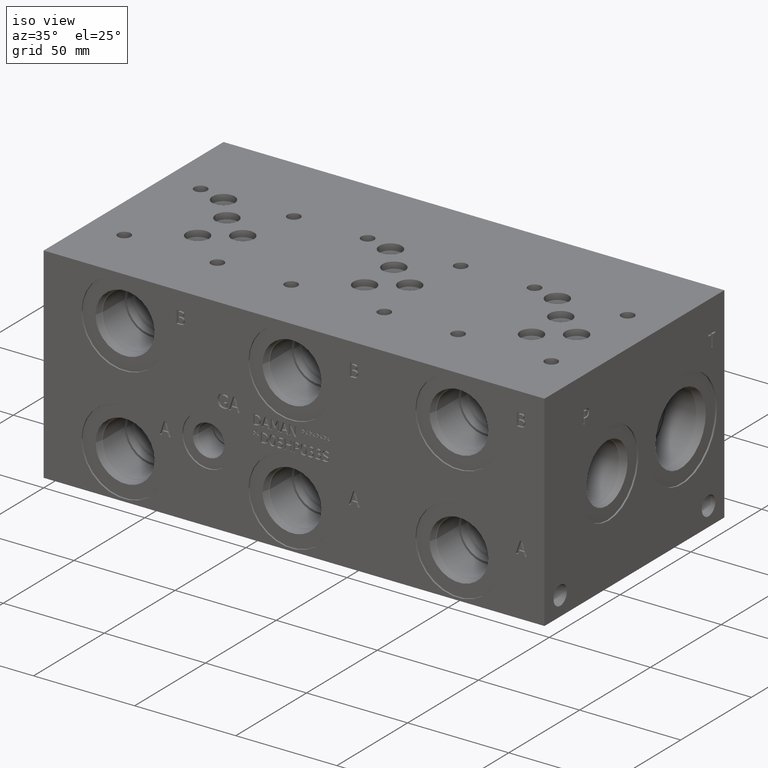
[diagram: clean part render]
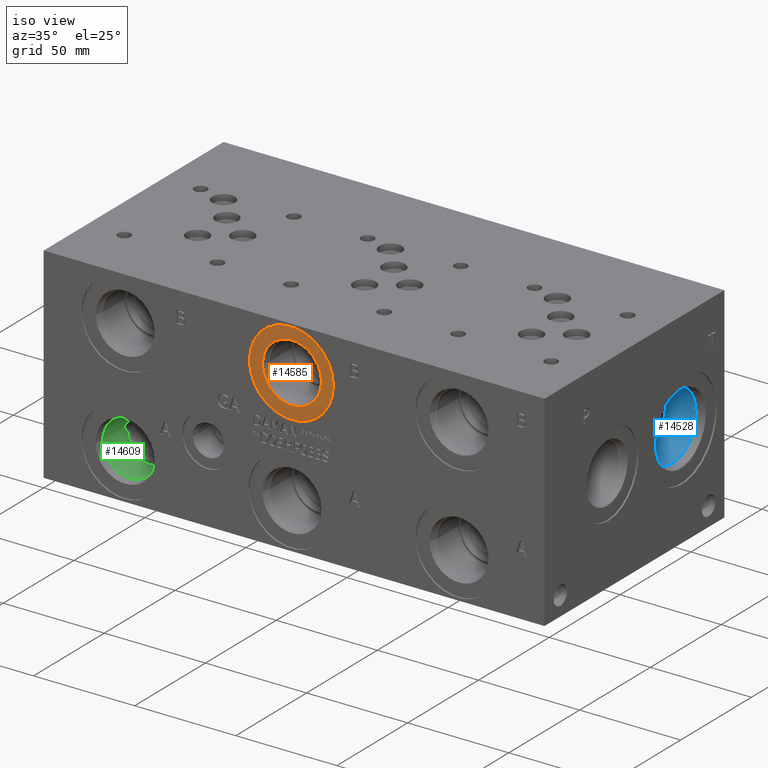
[diagram: same view with three faces highlighted in distinct colors, each labeled with its STEP entity id]
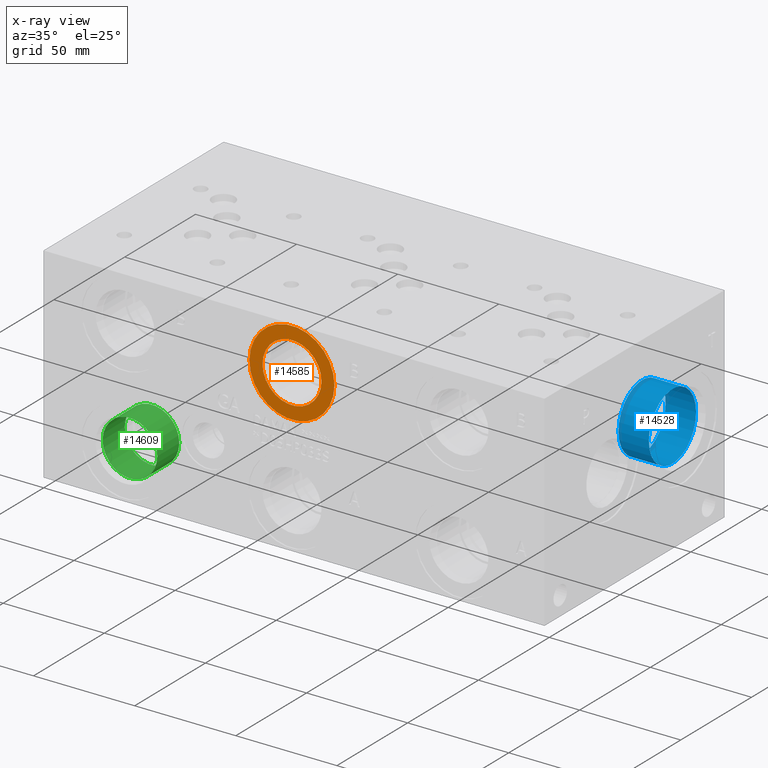
[diagram: x-ray of the same camera — body ghosted, the three highlighted faces saturated]
A machine part, iso view with three faces highlighted in distinct colors.
The next image is the same camera in x-ray (body ghosted, the three faces saturated) — at least one of them is partly hidden behind the body in this view.
Their STEP definitions:

[orange] entity #14585 — the highlighted planar face has unit normal (0, 1, 0).
#542=CIRCLE('',#15341,21.0185);
#543=CIRCLE('',#15342,21.0185);
#544=CIRCLE('',#15344,14.5923);
#545=CIRCLE('',#15345,14.5923);
#1205=FACE_BOUND('',#2729,.T.);
#1884=FACE_OUTER_BOUND('',#2728,.T.);
#2728=EDGE_LOOP('',(#12370,#12371));
#2729=EDGE_LOOP('',(#12372,#12373));
#6661=VERTEX_POINT('',#24839);
#6662=VERTEX_POINT('',#24841);
#6663=VERTEX_POINT('',#24845);
#6664=VERTEX_POINT('',#24846);
#8630=EDGE_CURVE('',#6661,#6662,#542,.T.);
#8631=EDGE_CURVE('',#6662,#6661,#543,.T.);
#8632=EDGE_CURVE('',#6663,#6664,#544,.T.);
#8633=EDGE_CURVE('',#6664,#6663,#545,.T.);
#12370=ORIENTED_EDGE('',*,*,#8631,.F.);
#12371=ORIENTED_EDGE('',*,*,#8630,.F.);
#12372=ORIENTED_EDGE('',*,*,#8632,.T.);
#12373=ORIENTED_EDGE('',*,*,#8633,.T.);
#13398=PLANE('',#15343);
#14585=ADVANCED_FACE('',(#1884,#1205),#13398,.F.);
#15341=AXIS2_PLACEMENT_3D('',#24842,#18097,#18098);
#15342=AXIS2_PLACEMENT_3D('',#24843,#18099,#18100);
#15343=AXIS2_PLACEMENT_3D('',#24844,#18101,#18102);
#15344=AXIS2_PLACEMENT_3D('',#24847,#18103,#18104);
#15345=AXIS2_PLACEMENT_3D('',#24848,#18105,#18106);
#18097=DIRECTION('center_axis',(0.,1.,0.));
#18098=DIRECTION('ref_axis',(1.,0.,0.));
#18099=DIRECTION('center_axis',(0.,1.,0.));
#18100=DIRECTION('ref_axis',(1.,0.,0.));
#18101=DIRECTION('center_axis',(0.,1.,0.));
#18102=DIRECTION('ref_axis',(0.,0.,1.));
#18103=DIRECTION('center_axis',(0.,1.,0.));
#18104=DIRECTION('ref_axis',(1.,0.,0.));
#18105=DIRECTION('center_axis',(0.,1.,0.));
#18106=DIRECTION('ref_axis',(1.,0.,0.));
#24839=CARTESIAN_POINT('',(101.2063,0.7874,79.375));
#24841=CARTESIAN_POINT('',(143.2433,0.7874,79.375));
#24842=CARTESIAN_POINT('Origin',(122.2248,0.7874,79.375));
#24843=CARTESIAN_POINT('Origin',(122.2248,0.7874,79.375));
#24844=CARTESIAN_POINT('Origin',(136.8171,0.7874,79.375));
#24845=CARTESIAN_POINT('',(136.8171,0.7874,79.375));
#24846=CARTESIAN_POINT('',(107.6325,0.7874,79.375));
#24847=CARTESIAN_POINT('Origin',(122.2248,0.7874,79.375));
#24848=CARTESIAN_POINT('Origin',(122.2248,0.7874,79.375));

[blue] entity #14528 — the highlighted cylindrical surface (bore or boss wall) has radius 16.6751 mm, axis along (1, 0, 0).
#102=CYLINDRICAL_SURFACE('',#15202,16.6751);
#457=CIRCLE('',#15199,16.6751);
#458=CIRCLE('',#15200,16.6751);
#460=CIRCLE('',#15203,16.6751);
#1827=FACE_OUTER_BOUND('',#2661,.T.);
#2661=EDGE_LOOP('',(#12089,#12090,#12091,#12092,#12093));
#4045=LINE('',#24569,#5339);
#5339=VECTOR('',#17776,16.6751);
#6570=VERTEX_POINT('',#24560);
#6571=VERTEX_POINT('',#24561);
#6573=VERTEX_POINT('',#24567);
#8498=EDGE_CURVE('',#6570,#6571,#457,.T.);
#8499=EDGE_CURVE('',#6571,#6570,#458,.T.);
#8501=EDGE_CURVE('',#6573,#6573,#460,.T.);
#8502=EDGE_CURVE('',#6573,#6571,#4045,.T.);
#12089=ORIENTED_EDGE('',*,*,#8501,.F.);
#12090=ORIENTED_EDGE('',*,*,#8502,.T.);
#12091=ORIENTED_EDGE('',*,*,#8498,.F.);
#12092=ORIENTED_EDGE('',*,*,#8499,.F.);
#12093=ORIENTED_EDGE('',*,*,#8502,.F.);
#14528=ADVANCED_FACE('',(#1827),#102,.F.);
#15199=AXIS2_PLACEMENT_3D('',#24562,#17766,#17767);
#15200=AXIS2_PLACEMENT_3D('',#24563,#17768,#17769);
#15202=AXIS2_PLACEMENT_3D('',#24566,#17772,#17773);
#15203=AXIS2_PLACEMENT_3D('',#24568,#17774,#17775);
#17766=DIRECTION('center_axis',(1.,0.,0.));
#17767=DIRECTION('ref_axis',(0.,1.,0.));
#17768=DIRECTION('center_axis',(1.,0.,0.));
#17769=DIRECTION('ref_axis',(0.,1.,0.));
#17772=DIRECTION('center_axis',(1.,0.,0.));
#17773=DIRECTION('ref_axis',(0.,1.,0.));
#17774=DIRECTION('center_axis',(-1.,0.,0.));
#17775=DIRECTION('ref_axis',(0.,1.,0.));
#17776=DIRECTION('',(-1.,0.,0.));
#24560=CARTESIAN_POINT('',(227.8126,113.9317,50.8));
#24561=CARTESIAN_POINT('',(227.8126,80.5815,50.8));
#24562=CARTESIAN_POINT('Origin',(227.8126,97.2566,50.8));
#24563=CARTESIAN_POINT('Origin',(227.8126,97.2566,50.8));
#24566=CARTESIAN_POINT('Origin',(237.7313,97.2566,50.8));
#24567=CARTESIAN_POINT('',(242.826321153229,80.5815,50.8));
#24568=CARTESIAN_POINT('Origin',(242.826321153229,97.2566,50.8));
#24569=CARTESIAN_POINT('',(237.7313,80.5815,50.8));

[green] entity #14609 — the highlighted cylindrical surface (bore or boss wall) has radius 13.5001 mm, axis along (0, -1, 0).
#139=CYLINDRICAL_SURFACE('',#15404,13.5001);
#578=CIRCLE('',#15401,13.5001);
#579=CIRCLE('',#15402,13.5001);
#581=CIRCLE('',#15405,13.5001);
#1908=FACE_OUTER_BOUND('',#2756,.T.);
#2756=EDGE_LOOP('',(#12480,#12481,#12482,#12483,#12484));
#4112=LINE('',#24970,#5406);
#5406=VECTOR('',#18247,13.5001);
#6702=VERTEX_POINT('',#24961);
#6703=VERTEX_POINT('',#24962);
#6705=VERTEX_POINT('',#24968);
#8686=EDGE_CURVE('',#6702,#6703,#578,.T.);
#8687=EDGE_CURVE('',#6703,#6702,#579,.T.);
#8689=EDGE_CURVE('',#6705,#6705,#581,.T.);
#8690=EDGE_CURVE('',#6705,#6703,#4112,.T.);
#12480=ORIENTED_EDGE('',*,*,#8689,.F.);
#12481=ORIENTED_EDGE('',*,*,#8690,.T.);
#12482=ORIENTED_EDGE('',*,*,#8686,.F.);
#12483=ORIENTED_EDGE('',*,*,#8687,.F.);
#12484=ORIENTED_EDGE('',*,*,#8690,.F.);
#14609=ADVANCED_FACE('',(#1908),#139,.F.);
#15401=AXIS2_PLACEMENT_3D('',#24963,#18237,#18238);
#15402=AXIS2_PLACEMENT_3D('',#24964,#18239,#18240);
#15404=AXIS2_PLACEMENT_3D('',#24967,#18243,#18244);
#15405=AXIS2_PLACEMENT_3D('',#24969,#18245,#18246);
#18237=DIRECTION('center_axis',(0.,-1.,0.));
#18238=DIRECTION('ref_axis',(1.,0.,0.));
#18239=DIRECTION('center_axis',(0.,-1.,0.));
#18240=DIRECTION('ref_axis',(1.,0.,0.));
#18243=DIRECTION('center_axis',(0.,-1.,0.));
#18244=DIRECTION('ref_axis',(1.,0.,0.));
#18245=DIRECTION('center_axis',(0.,1.,0.));
#18246=DIRECTION('ref_axis',(1.,0.,0.));
#18247=DIRECTION('',(0.,1.,0.));
#24961=CARTESIAN_POINT('',(53.1749,19.8374,22.225));
#24962=CARTESIAN_POINT('',(26.1747,19.8374,22.225));
#24963=CARTESIAN_POINT('Origin',(39.6748,19.8374,22.225));
#24964=CARTESIAN_POINT('Origin',(39.6748,19.8374,22.225));
#24967=CARTESIAN_POINT('Origin',(39.6748,9.9187,22.225));
#24968=CARTESIAN_POINT('',(26.1747,4.2799,22.225));
#24969=CARTESIAN_POINT('Origin',(39.6748,4.2799,22.225));
#24970=CARTESIAN_POINT('',(26.1747,9.9187,22.225));